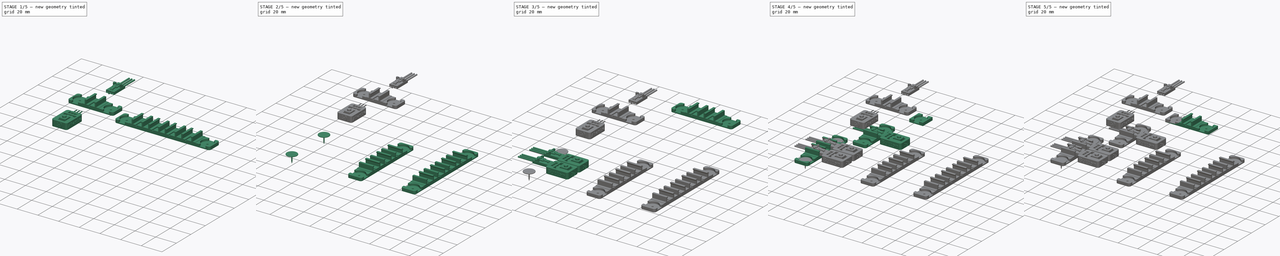
[diagram: build sequence overview — one tinted view per stage of 5, left to right]
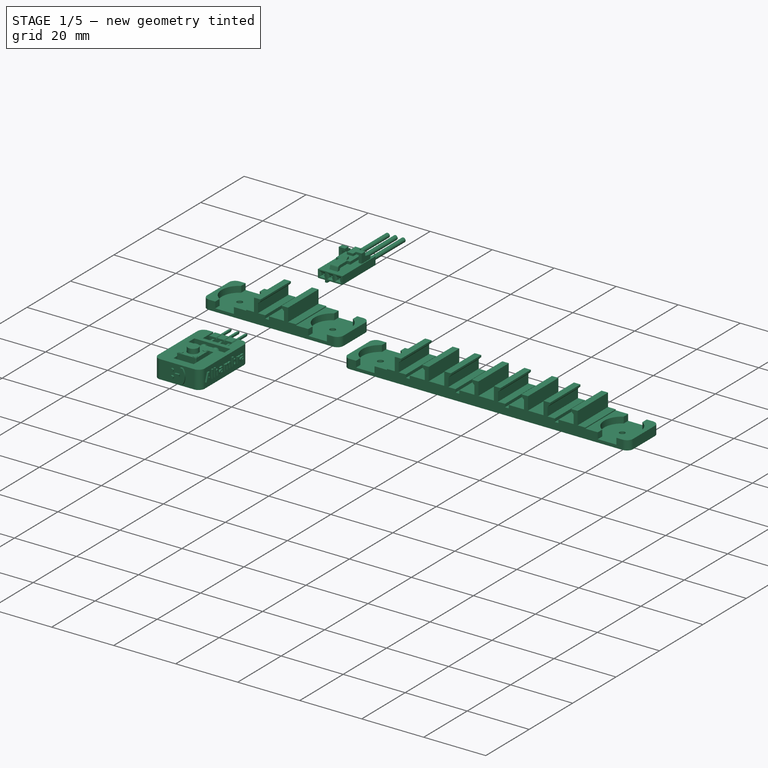
[diagram: stage 1 of 5 — iso view after this stage's code; geometry added in this stage tinted green]
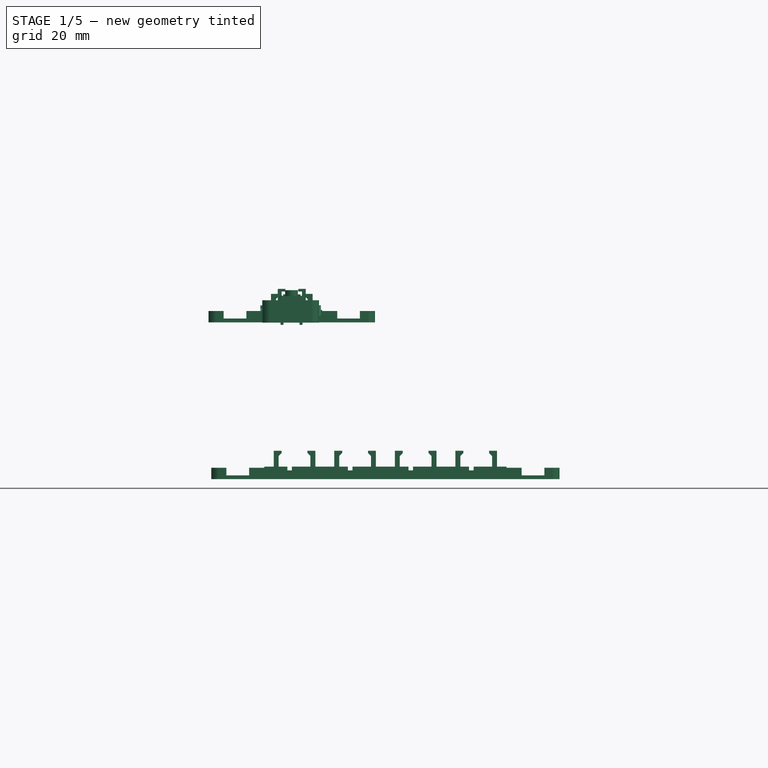
[diagram: stage 1 of 5 — front view after this stage's code; geometry added in this stage tinted green]
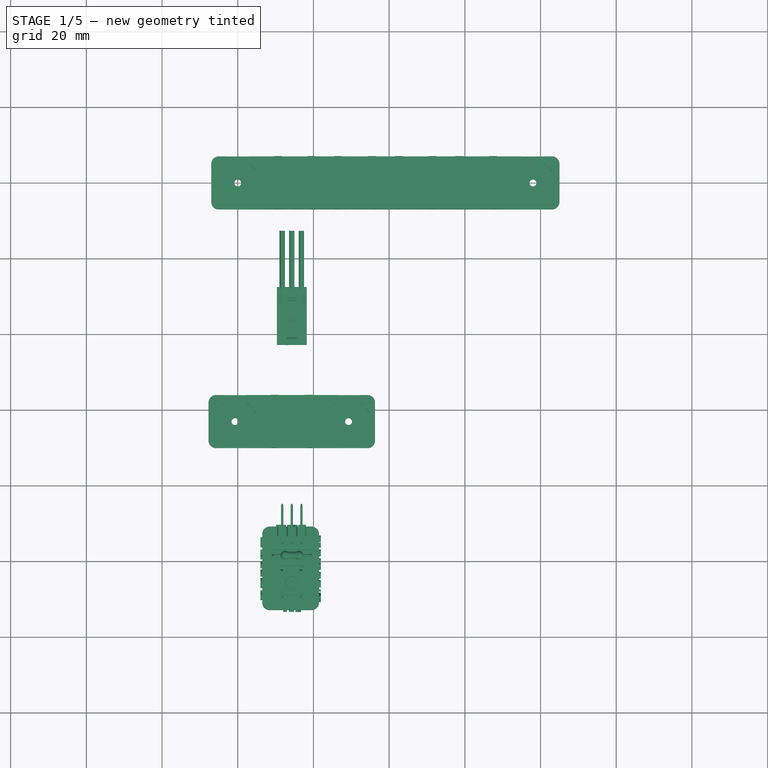
[diagram: stage 1 of 5 — top view after this stage's code; geometry added in this stage tinted green]
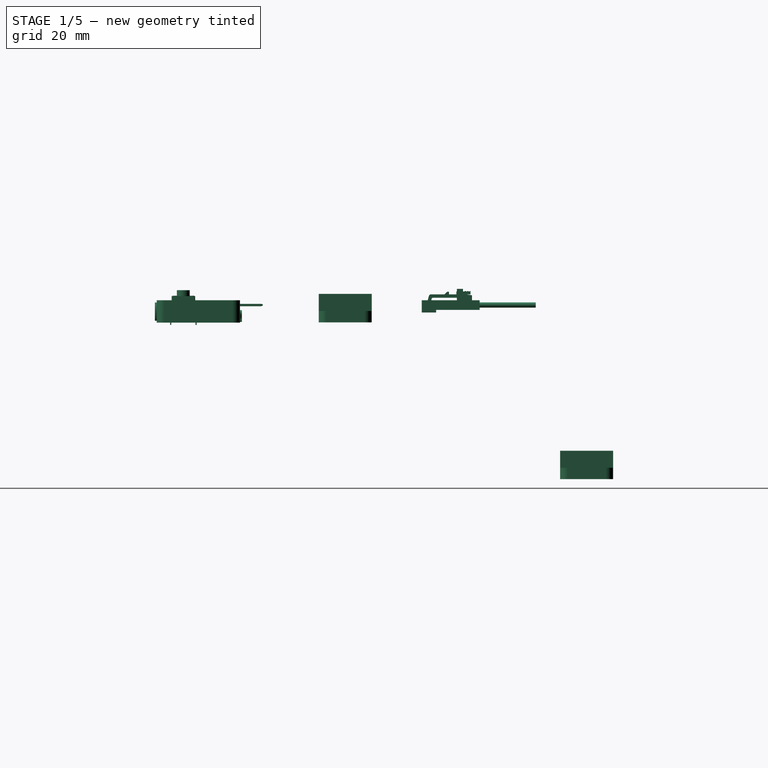
[diagram: stage 1 of 5 — right view after this stage's code; geometry added in this stage tinted green]
FCSTD DOCUMENT  (FreeCAD 0.16R6707 (Git))
Label: board-clamp
License: All rights reserved
LicenseURL: http://en.wikipedia.org/wiki/All_rights_reserved
objects: Part::Feature×32, Part::Part2DObjectPython×18, Part::FeaturePython×13, Part::Compound×10, App::DocumentObjectGroup×10, App::Annotation×7, Sketcher::SketchObject×4, Part::Fillet×4, PartDesign::Pad×2, PartDesign::Pocket×2, Spreadsheet::Sheet×1, Part::MultiFuse×1
note: 90 computed .brp shape members not serialized (recipe doc carries the construction recipe); baked Part::Feature solids carry a one-line shape summary decoded from their .brp

FEATURE [Part::Feature] Fusion001003  label="board-clampx1-fusion"
  shape: bbox 44 x 14 x 7.5 mm, 44 faces (baked)
FEATURE [Part::Fillet] Fillet001  label="Board-clampx1-rounded"
  Base = -> Fusion001003
  Edges = 4 edges r=2: [Edge1,Edge2,Edge108,Edge109]
FEATURE [Part::FeaturePython] Clone008007  label="Board-clampx1"  # Draft clone (typed FeaturePython)
  Objects = -> [Fillet001]
  Placement = pos=(0,29,0) rot=(0,0,1;0rad)
  Scale = (1,1,1)
FEATURE [Part::Feature] Fusion001005  label="board-clampx4-fusion"
  shape: bbox 92 x 14 x 7.5 mm, 92 faces (baked)
FEATURE [Part::Fillet] Fillet003  label="board-clampx4-rounded"
  Base = -> Fusion001005
  Edges = 4 edges r=2: [Edge1,Edge2,Edge252,Edge253]
FEATURE [Part::Feature] Compound002002016  label="Connector007"
  Placement = pos=(72.1686,-95.065,0) rot=(0,0,1;0rad)
  shape: bbox 30.15 x 7.9 x 6.24 mm, 220 faces, 7 solids (baked)
FEATURE [Part::Feature] Compound002002017  label="Connector008"
  Placement = pos=(72.1686,-79.065,0) rot=(0,0,1;0rad)
  shape: bbox 30.15 x 7.9 x 6.24 mm, 220 faces, 7 solids (baked)
FEATURE [Part::Feature] Compound002002018  label="Connector009"
  Placement = pos=(72.1686,-63.065,0) rot=(0,0,1;0rad)
  shape: bbox 30.15 x 7.9 x 6.24 mm, 220 faces, 7 solids (baked)
FEATURE [Part::Feature] Compound002002019  label="Connector010"
  Placement = pos=(72.1686,-47.065,0) rot=(0,0,1;0rad)
  shape: bbox 30.15 x 7.9 x 6.24 mm, 220 faces, 7 solids (baked)
FEATURE [Part::Feature] Compound002002020  label="white-pushpin003"
  Placement = pos=(79.9662,-158.098,-4.57) rot=(0,0,1;0rad)
  shape: bbox 11.26 x 11.26 x 8.7 mm, 14 faces, 2 solids (baked)
FEATURE [Part::Feature] Compound002002021  label="white-pushpin004"
  Placement = pos=(79.9662,-80.0982,-4.57) rot=(0,0,1;0rad)
  shape: bbox 11.26 x 11.26 x 8.7 mm, 14 faces, 2 solids (baked)
FEATURE [App::DocumentObjectGroup] Grupo011  label="clampx4"
  Group = -> [Compound002002016,Compound002002017,Compound002002018,Compound002002019,Compound002002020,Compound002002021,Clone008013]
FEATURE [App::DocumentObjectGroup] Grupo  label="Assembly"
  Group = -> [Grupo008,Grupo009,Part__Feature,Grupo010,Grupo011]
FEATURE [Part::Feature] Part__Feature006  label="board001"
  Placement = pos=(0,-85,-12.57) rot=(0,0,1;0rad)
  shape: bbox 154.2 x 109.4 x 8 mm, 6 faces (baked)
FEATURE [Part::Compound] Compound002002022  label="Alhambra_button003"
  Links = -> [Fusion001001,Compound002001,Compound002002001,Compound001]
  Placement = pos=(6.46521,-91.5834,43.5497) rot=(0,0,-1;1.5708rad)
FEATURE [Part::Compound] Compound002002023  label="Connector011"
  Links = -> [Clone004001,Clone008001,Cylinder003,Cylinder001001,Cylinder002001]
  Placement = pos=(14.2752,-28.2834,46) rot=(0,0,-1;1.5708rad)
FEATURE [Part::Feature] Compound002002025  label="Pushpin-003"
  Placement = pos=(-0.724787,-63.7834,87.6497) rot=(0,0,-1;1.5708rad)
  shape: bbox 11.26 x 11.26 x 8.7 mm, 14 faces, 2 solids (baked)
FEATURE [Part::FeaturePython] Clone008014  label="Board-clampx1-003"  # Draft clone (typed FeaturePython)
  Objects = -> [Clone008007]
  Placement = pos=(-0.724787,-63.7834,41.43) rot=(0,0,1;0rad)
  Scale = (1,1,1)
FEATURE [Part::Feature] Compound002002026  label="Pushpin-004"
  Placement = pos=(29.2752,-63.7834,87.6497) rot=(0,0,-1;1.5708rad)
  shape: bbox 11.26 x 11.26 x 8.7 mm, 14 faces, 2 solids (baked)
FEATURE [Part::Part2DObjectPython] Line  # Draft 2D object (typed FeaturePython)
  ChamferSize = 0
  Closed = false
  End = (29.2752,-63.7834,-4.57)
  FilletRadius = 0
  Length = 84.1197
  MakeFace = true
  Points = (2) [(29.2752,-63.7834,79.5497),(29.2752,-63.7834,-4.57)]
  Start = (29.2752,-63.7834,79.5497)
  Subdivisions = 0
FEATURE [Part::Part2DObjectPython] Line001  # Draft 2D object (typed FeaturePython)
  ChamferSize = 0
  Closed = false
  End = (-0.724787,-63.7834,79.5497)
  FilletRadius = 0
  Length = 84.1197
  MakeFace = true
  Points = (2) [(-0.724787,-63.7834,-4.57),(-0.724787,-63.7834,79.5497)]
  Start = (-0.724787,-63.7834,-4.57)
  Subdivisions = 0
FEATURE [Part::Part2DObjectPython] Line003  # Draft 2D object (typed FeaturePython)
  ChamferSize = 0
  Closed = false
  End = (14.4552,-85.5834,46.18)
  FilletRadius = 0
  Length = 42
  MakeFace = true
  Points = (2) [(14.4552,-43.5834,46.18),(14.4552,-85.5834,46.18)]
  Start = (14.4552,-43.5834,46.18)
  Subdivisions = 0
FEATURE [App::Annotation] Text
  LabelText = 1
  Position = (-24,-64,99)
FEATURE [Part::Part2DObjectPython] Circle001  # Draft 2D object (typed FeaturePython)
  FirstAngle = 0
  LastAngle = 0
  MakeFace = false
  Placement = pos=(-22.8341,-64,102.813) rot=(1,0,0;1.5708rad)
  Radius = 7.16764
FEATURE [Part::Part2DObjectPython] DWire  # Draft 2D object (typed FeaturePython)
  ChamferSize = 0
  Closed = false
  End = (-9,-64,85)
  FilletRadius = 0
  Length = 21.198
  MakeFace = true
  Points = (3) [(-22,-64,95),(-20,-64,85),(-9,-64,85)]
  Start = (-22,-64,95)
  Subdivisions = 0
FEATURE [Part::Part2DObjectPython] Circle002  # Draft 2D object (typed FeaturePython)
  FirstAngle = 0
  LastAngle = 0
  MakeFace = false
  Placement = pos=(-22.8341,-64,102.813) rot=(1,0,0;1.5708rad)
  Radius = 7.16764
FEATURE [App::Annotation] Text001
  LabelText = 1
  Position = (-24,-64,99)
FEATURE [Part::Part2DObjectPython] DWire001  # Draft 2D object (typed FeaturePython)
  ChamferSize = 0
  Closed = false
  End = (-9,-64,85)
  FilletRadius = 0
  Length = 21.198
  MakeFace = true
  Points = (3) [(-22,-64,95),(-20,-64,85),(-9,-64,85)]
  Start = (-22,-64,95)
  Subdivisions = 0
FEATURE [Part::Part2DObjectPython] Circle  label="Circle009"  # Draft 2D object (typed FeaturePython)
  FirstAngle = 0
  LastAngle = 0
  MakeFace = false
  Placement = pos=(-22.8341,-64,60.8132) rot=(1,0,0;1.5708rad)
  Radius = 7.16764
FEATURE [App::Annotation] Text002
  LabelText = 2
  Position = (-24,-64,57)
FEATURE [Part::Part2DObjectPython] DWire002  # Draft 2D object (typed FeaturePython)
  ChamferSize = 0
  Closed = false
  End = (-9,-64,43)
  FilletRadius = 0
  Length = 21.198
  MakeFace = true
  Placement = pos=(0,0,-42) rot=(0,0,1;0rad)
  Points = (3) [(-22,-64,95),(-20,-64,85),(-9,-64,85)]
  Start = (-22,-64,53)
  Subdivisions = 0
FEATURE [Part::Part2DObjectPython] Circle003  label="Circle004"  # Draft 2D object (typed FeaturePython)
  FirstAngle = 0
  LastAngle = 0
  MakeFace = false
  Placement = pos=(-22.8341,-64,60.8132) rot=(1,0,0;1.5708rad)
  Radius = 7.16764
FEATURE [App::Annotation] Text003
  LabelText = 2
  Position = (-24,-64,57)
FEATURE [Part::Part2DObjectPython] DWire003  # Draft 2D object (typed FeaturePython)
  ChamferSize = 0
  Closed = false
  End = (-9,-64,43)
  FilletRadius = 0
  Length = 21.198
  MakeFace = true
  Placement = pos=(0,0,-42) rot=(0,0,1;0rad)
  Points = (3) [(-22,-64,95),(-20,-64,85),(-9,-64,85)]
  Start = (-22,-64,53)
  Subdivisions = 0
FEATURE [Part::Part2DObjectPython] DWire004  # Draft 2D object (typed FeaturePython)
  ChamferSize = 0
  Closed = false
  End = (-64,-64,-5)
  FilletRadius = 0
  Length = 21.198
  MakeFace = true
  Placement = pos=(-55,0,-90) rot=(0,0,1;0rad)
  Points = (3) [(-22,-64,95),(-20,-64,85),(-9,-64,85)]
  Start = (-77,-64,5)
  Subdivisions = 0
FEATURE [App::Annotation] Text005
  LabelText = 5
  Position = (-79,-64,9)
FEATURE [Part::Part2DObjectPython] DWire005  # Draft 2D object (typed FeaturePython)
  ChamferSize = 0
  Closed = false
  End = (-64,-64,-5)
  FilletRadius = 0
  Length = 21.198
  MakeFace = true
  Placement = pos=(-55,0,-90) rot=(0,0,1;0rad)
  Points = (3) [(-22,-64,95),(-20,-64,85),(-9,-64,85)]
  Start = (-77,-64,5)
  Subdivisions = 0
FEATURE [App::Annotation] Text007
  LabelText = 4
  Position = (-47,-64,25)
FEATURE [Part::Part2DObjectPython] Circle007  label="Circle010"  # Draft 2D object (typed FeaturePython)
  FirstAngle = 0
  LastAngle = 0
  MakeFace = false
  Placement = pos=(-45.8341,-64,28.8132) rot=(1,0,0;1.5708rad)
  Radius = 7.16764
FEATURE [App::Annotation] Text008
  LabelText = 3
  Position = (85,-64,93)
FEATURE [Part::Part2DObjectPython] Circle008  label="Circle011"  # Draft 2D object (typed FeaturePython)
  FirstAngle = 0
  LastAngle = 0
  MakeFace = false
  Placement = pos=(86.1659,-64,96.8132) rot=(1,0,0;1.5708rad)
  Radius = 7.16764
FEATURE [Part::Part2DObjectPython] DWire007  # Draft 2D object (typed FeaturePython)
  ChamferSize = 0
  Closed = false
  End = (49.8594,-64,75.6961)
  FilletRadius = 0
  Length = 42.3668
  MakeFace = true
  Points = (3) [(85,-64,89),(76.3511,-64,75.6877),(49.8594,-64,75.6961)]
  Start = (85,-64,89)
  Subdivisions = 0
FEATURE [Part::Part2DObjectPython] DWire006  # Draft 2D object (typed FeaturePython)
  ChamferSize = 0
  Closed = false
  End = (-32,-64,11)
  FilletRadius = 0
  Length = 21.198
  MakeFace = true
  Placement = pos=(-23,0,-74) rot=(0,0,1;0rad)
  Points = (3) [(-22,-64,95),(-20,-64,85),(-9,-64,85)]
  Start = (-45,-64,21)
  Subdivisions = 0
FEATURE [Part::Part2DObjectPython] Circle005  label="Circle006"  # Draft 2D object (typed FeaturePython)
  FirstAngle = 0
  LastAngle = 0
  MakeFace = false
  Placement = pos=(-77.8341,-64,12.8132) rot=(1,0,0;1.5708rad)
  Radius = 7.16764
FEATURE [App::DocumentObjectGroup] Grupo012  label="Exploded-view"
  Group = -> [Part__Feature006,Compound002002022,Compound002002023,Compound002002025,Clone008014,Compound002002026,Line,Line001,Line003,Text,Circle001,DWire,Circle002,Text001,DWire001,Circle,Text002,DWire002,Circle003,Text003,DWire003,DWire004,Text005,DWire005,Text007,Circle007,Text008,Circle008,DWire007,DWire006,Circle005]
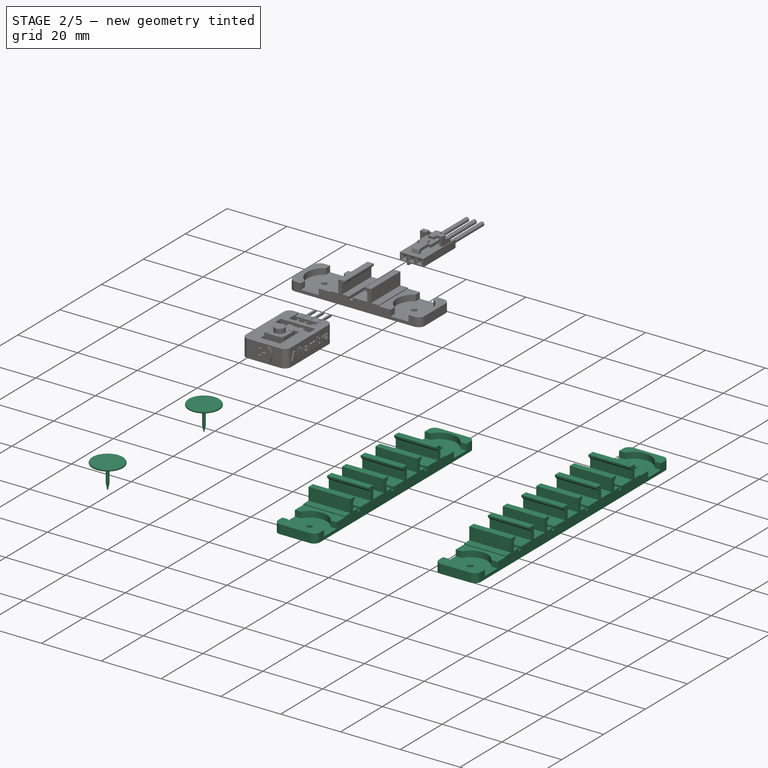
[diagram: stage 2 of 5 — iso view after this stage's code; geometry added in this stage tinted green]
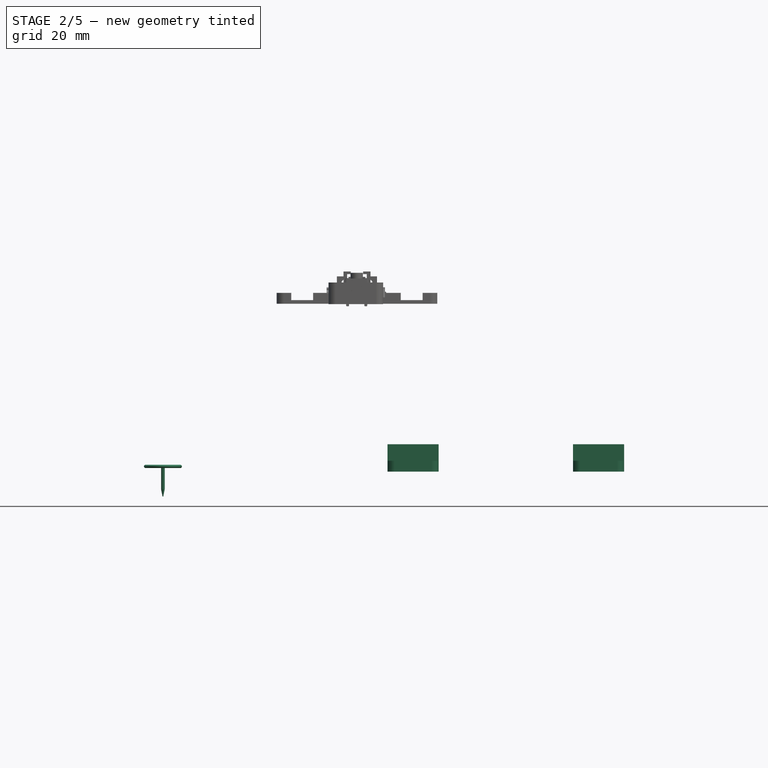
[diagram: stage 2 of 5 — front view after this stage's code; geometry added in this stage tinted green]
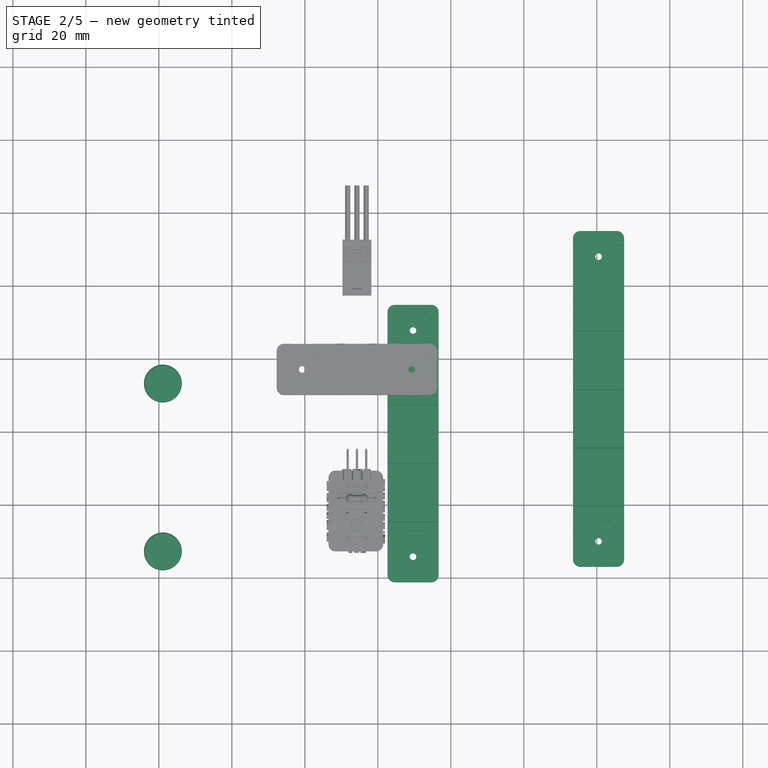
[diagram: stage 2 of 5 — top view after this stage's code; geometry added in this stage tinted green]
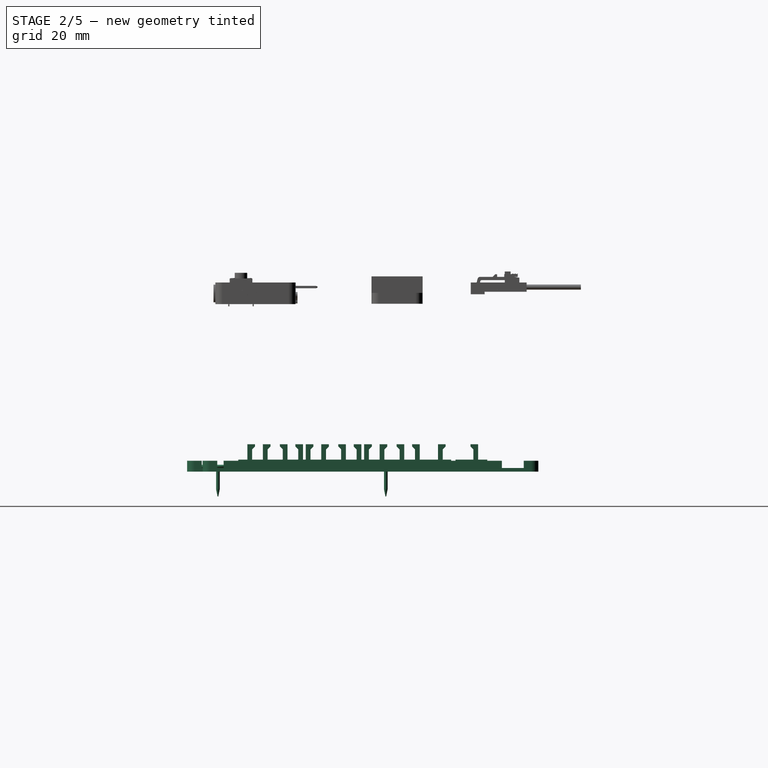
[diagram: stage 2 of 5 — right view after this stage's code; geometry added in this stage tinted green]
FEATURE [Part::Feature] Part__Feature  label="board"
  Placement = pos=(0,-85,-12.57) rot=(0,0,1;0rad)
  shape: bbox 154.2 x 109.4 x 8 mm, 6 faces (baked)
FEATURE [Part::Feature] Part__Feature004  label="white-Pushpin"
  Placement = pos=(0.502392,48.0332,1.3) rot=(0,0,1;0rad)
  shape: bbox 11.26 x 11.26 x 0.9 mm, 7 faces (baked)
FEATURE [Part::Feature] Part__Feature005  label="white-Pushpin001"
  Placement = pos=(0.502392,48.0332,1.3) rot=(0,0,1;0rad)
  shape: bbox 9.55 x 9.55 x 8.4 mm, 7 faces (baked)
FEATURE [Part::Compound] Compound002002009  label="white-pushpin"
  Links = -> [Part__Feature004,Part__Feature005]
  Placement = pos=(-39.3934,-114.905,-4.57) rot=(0,0,1;0rad)
FEATURE [Part::Compound] Compound002002010  label="white-pushpin001"
  Links = -> [Part__Feature004,Part__Feature005]
  Placement = pos=(-39.3934,-160.905,-4.57) rot=(0,0,1;0rad)
FEATURE [App::DocumentObjectGroup] Grupo009  label="clampx2"
  Group = -> [Clone008009,Compound002002005,Compound002002006,Compound002002007,Compound002002008,Compound002002009,Compound002002010]
FEATURE [Part::Feature] Fusion001004  label="board-clamp-x3-fusion"
  shape: bbox 76 x 14 x 7.5 mm, 76 faces (baked)
FEATURE [Part::Fillet] Fillet002  label="Board-clampx3-rounded"
  Base = -> Fusion001004
  Edges = 4 edges r=2: [Edge1,Edge2,Edge204,Edge205]
FEATURE [Part::FeaturePython] Clone008010  label="Board-clampx3"  # Draft clone (typed FeaturePython)
  Objects = -> [Fillet002]
  Placement = pos=(0,66,0) rot=(0,0,1;0rad)
  Scale = (1,1,1)
FEATURE [App::DocumentObjectGroup] Grupo006  label="src-board-clamp-generic"
  Group = -> [Fusion,Fillet,Fillet001,Fusion001004,Fillet002,Fusion001005,Fillet003]
FEATURE [Part::FeaturePython] Clone008011  label="Board-clampx4"  # Draft clone (typed FeaturePython)
  Objects = -> [Fillet003]
  Placement = pos=(0,85,0) rot=(0,0,1;0rad)
  Scale = (1,1,1)
FEATURE [App::DocumentObjectGroup] Grupo007  label="print"
  Group = -> [Clone008006,Clone008007,Clone008010,Clone008011]
FEATURE [Part::FeaturePython] Clone008012  label="Board-clampx3-1"  # Draft clone (typed FeaturePython)
  Objects = -> [Clone008010]
  Placement = pos=(29.6423,-114.302,-4.57) rot=(0,0,1;1.5708rad)
  Scale = (1,1,1)
FEATURE [Part::Feature] Compound002002011  label="Connector004"
  Placement = pos=(21.3423,-99.3021,0) rot=(0,0,1;0rad)
  shape: bbox 30.15 x 7.9 x 6.24 mm, 220 faces, 7 solids (baked)
FEATURE [Part::Feature] Compound002002012  label="Connector005"
  Placement = pos=(21.3423,-83.3021,0) rot=(0,0,1;0rad)
  shape: bbox 30.15 x 7.9 x 6.24 mm, 220 faces, 7 solids (baked)
FEATURE [Part::Feature] Compound002002013  label="Connector006"
  Placement = pos=(21.3423,-67.3021,0) rot=(0,0,1;0rad)
  shape: bbox 30.15 x 7.9 x 6.24 mm, 220 faces, 7 solids (baked)
FEATURE [Part::Feature] Compound002002014  label="white-pushpin002"
  Placement = pos=(29.1399,-162.335,-4.57) rot=(0,0,1;0rad)
  shape: bbox 11.26 x 11.26 x 8.7 mm, 14 faces, 2 solids (baked)
FEATURE [Part::Feature] Compound002002015  label="Pushpin-002"
  Placement = pos=(29.6423,-52.3021,-3.35028) rot=(0,0,1;0rad)
  shape: bbox 11.26 x 11.26 x 8.7 mm, 14 faces, 2 solids (baked)
FEATURE [App::DocumentObjectGroup] Grupo010  label="clampx3"
  Group = -> [Clone008012,Compound002002011,Compound002002012,Compound002002013,Compound002002014,Compound002002015]
FEATURE [Part::FeaturePython] Clone008013  label="Board-clampx4-1"  # Draft clone (typed FeaturePython)
  Objects = -> [Clone008011]
  Placement = pos=(80.4686,-110.065,-4.57) rot=(0,0,1;1.5708rad)
  Scale = (1,1,1)
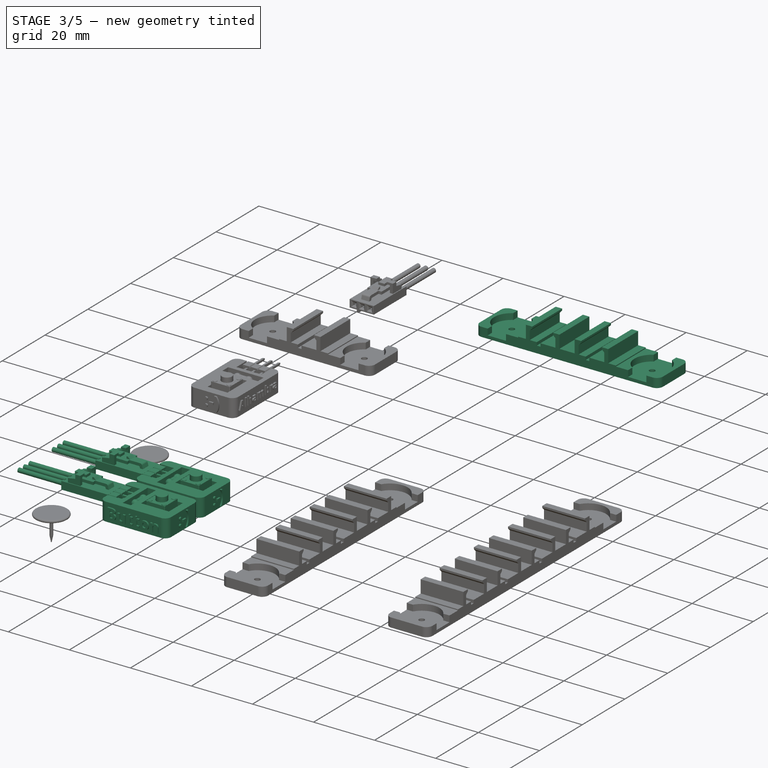
[diagram: stage 3 of 5 — iso view after this stage's code; geometry added in this stage tinted green]
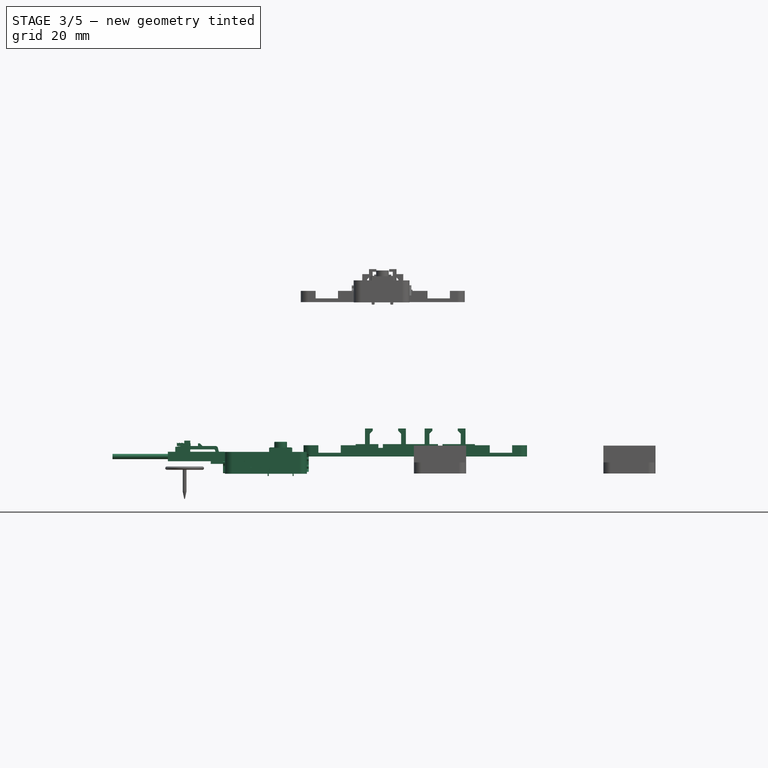
[diagram: stage 3 of 5 — front view after this stage's code; geometry added in this stage tinted green]
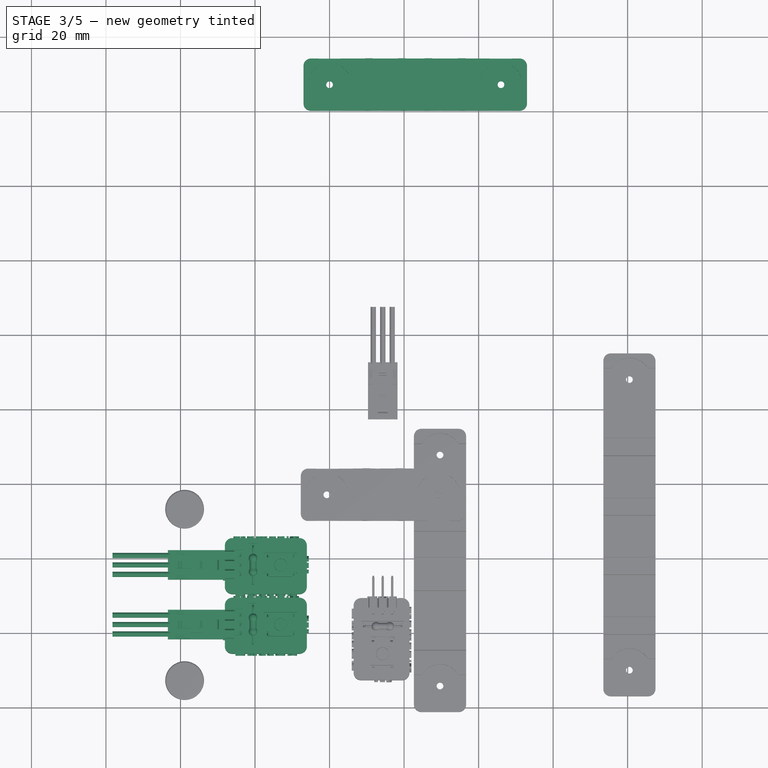
[diagram: stage 3 of 5 — top view after this stage's code; geometry added in this stage tinted green]
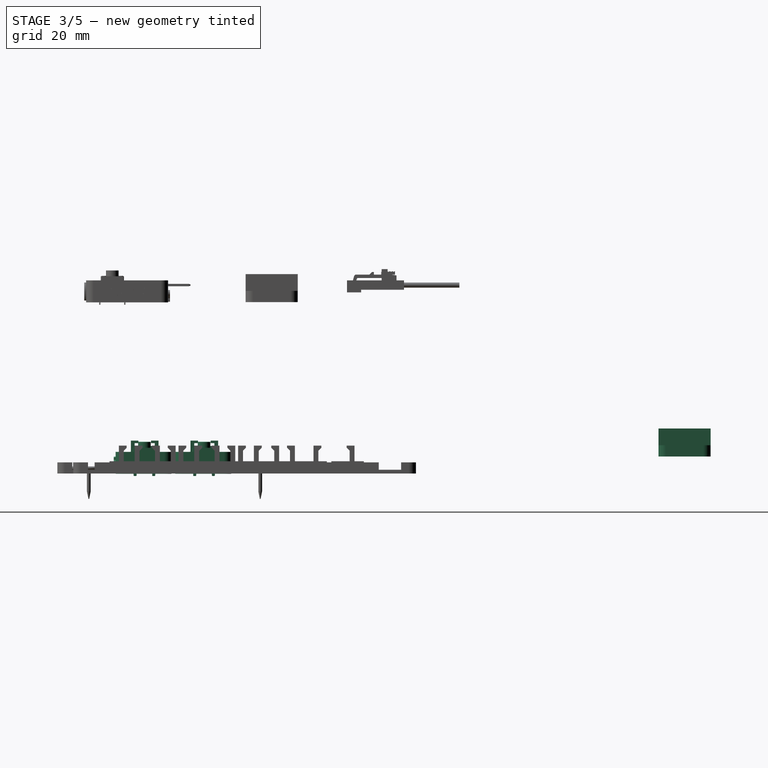
[diagram: stage 3 of 5 — right view after this stage's code; geometry added in this stage tinted green]
FEATURE [Part::Feature] Fusion001002  label="board-clampx2-fusion"
  shape: bbox 60 x 14 x 7.5 mm, 60 faces (baked)
FEATURE [Part::Fillet] Fillet  label="board-clampx2-rounded"
  Base = -> Fusion001002
  Edges = 4 edges r=2: [Edge1,Edge2,Edge156,Edge157]
FEATURE [Part::FeaturePython] Clone008006  label="board-clampx2"  # Draft clone (typed FeaturePython)
  Objects = -> [Fillet]
  Placement = pos=(0,47,0) rot=(0,0,1;0rad)
  Scale = (1,1,1)
FEATURE [App::DocumentObjectGroup] Grupo008  label="clampx1"
  Group = -> [Compound,Compound002002003,Compound002002004,Compound002002002,Clone008008]
FEATURE [Part::Compound] Compound002002005  label="Alhambra_button001"
  Links = -> [Fusion001001,Compound002001,Compound002002001,Compound001]
  Placement = pos=(-28.091,-89.6818,-2.45028) rot=(0,0,1;0rad)
FEATURE [Part::Compound] Compound002002006  label="Connector002"
  Links = -> [Clone004001,Clone008001,Cylinder003,Cylinder001001,Cylinder002001]
  Placement = pos=(-43.391,-81.8718,0) rot=(0,0,1;0rad)
FEATURE [Part::Compound] Compound002002007  label="Alhambra_button002"
  Links = -> [Fusion001001,Compound002001,Compound002002001,Compound001]
  Placement = pos=(-28.091,-105.682,-2.45028) rot=(0,0,1;0rad)
FEATURE [Part::Compound] Compound002002008  label="Connector003"
  Links = -> [Clone004001,Clone008001,Cylinder003,Cylinder001001,Cylinder002001]
  Placement = pos=(-43.391,-97.8718,0) rot=(0,0,1;0rad)
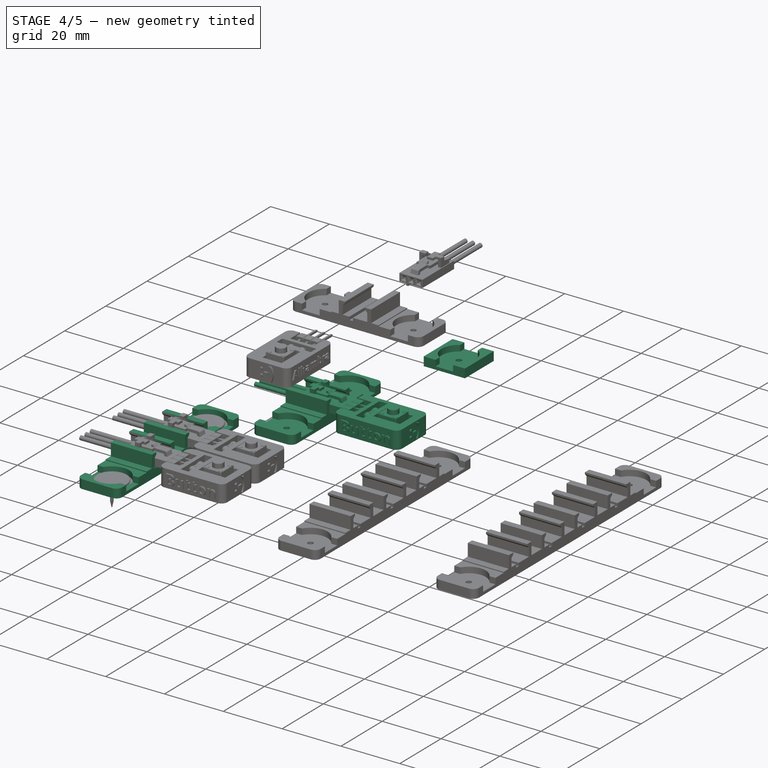
[diagram: stage 4 of 5 — iso view after this stage's code; geometry added in this stage tinted green]
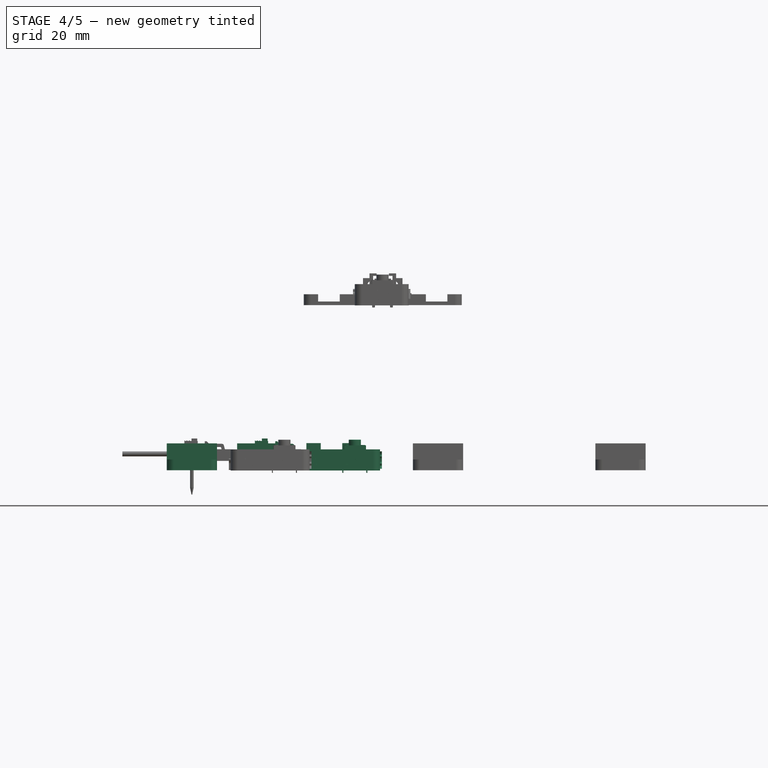
[diagram: stage 4 of 5 — front view after this stage's code; geometry added in this stage tinted green]
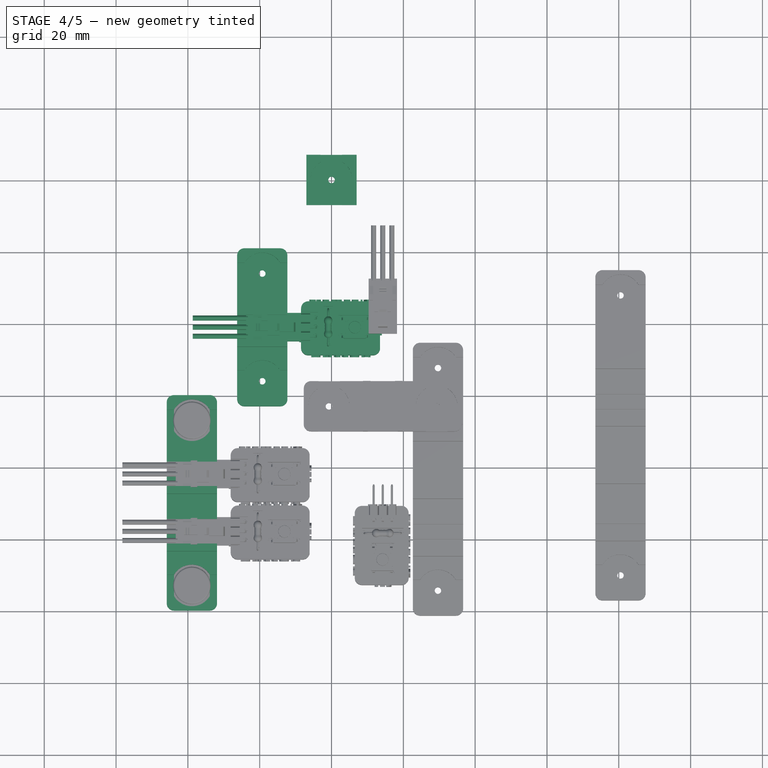
[diagram: stage 4 of 5 — top view after this stage's code; geometry added in this stage tinted green]
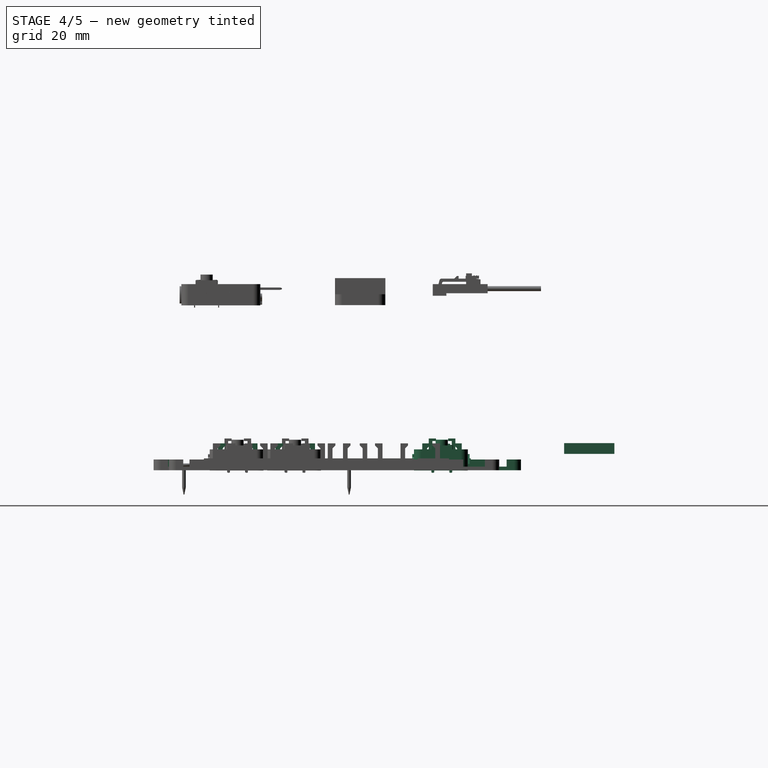
[diagram: stage 4 of 5 — right view after this stage's code; geometry added in this stage tinted green]
FEATURE [Part::Feature] Clone004001  label="Connector001"
  shape: bbox 15.3 x 7.9 x 6.24 mm, 133 faces (baked)
FEATURE [Part::Feature] Clone008001  label="pins001"
  shape: bbox 12.6 x 6.58 x 1.959 mm, 78 faces, 3 solids (baked)
FEATURE [Part::Feature] Cylinder003  label="vcc-wire001"
  Placement = pos=(5.15,0,0) rot=(0,-1,0;1.5708rad)
  shape: bbox 20 x 1.4 x 1.4 mm, 3 faces (baked)
FEATURE [Part::Feature] Cylinder001001  label="vcc-signal001"
  Placement = pos=(5.15,2.54,0) rot=(0,-1,0;1.5708rad)
  shape: bbox 20 x 1.4 x 1.4 mm, 3 faces (baked)
FEATURE [Part::Feature] Cylinder002001  label="wire-gnd001"
  Placement = pos=(5.15,-2.54,0) rot=(0,-1,0;1.5708rad)
  shape: bbox 20 x 1.4 x 1.4 mm, 3 faces (baked)
FEATURE [Part::Feature] Fusion001001  label="PCB-with-text001"
  shape: bbox 23 x 16 x 5.9 mm, 444 faces (baked)
FEATURE [Part::Feature] Compound002001  label="Compound003"
  shape: bbox 2.3 x 10.64 x 5.304 mm, 28 faces, 6 solids (baked)
FEATURE [Part::Feature] Compound002002001  label="Compound002004"
  shape: bbox 10.36 x 7.62 x 5.5 mm, 96 faces, 6 solids (baked)
FEATURE [Part::Feature] Compound001  label="pushbutton-mini001"
  Placement = pos=(14.9681,7.73489,1.4) rot=(0,0,1;0rad)
  shape: bbox 8.044 x 6.2 x 9.2 mm, 136 faces, 6 solids (baked)
FEATURE [Part::Compound] Compound  label="Alhambra_button"
  Links = -> [Fusion001001,Compound002001,Compound002002001,Compound001]
  Placement = pos=(-8.48388,-48.7953,-2.45028) rot=(0,0,1;0rad)
FEATURE [Part::Feature] Compound002002002  label="Pushpin-1"
  Placement = pos=(-19.2839,-55.9853,-3.35028) rot=(0,0,1;0rad)
  shape: bbox 11.26 x 11.26 x 8.7 mm, 14 faces, 2 solids (baked)
FEATURE [Part::Compound] Compound002002003  label="Connector"
  Links = -> [Clone004001,Clone008001,Cylinder003,Cylinder001001,Cylinder002001]
  Placement = pos=(-23.7839,-40.9853,0) rot=(0,0,1;0rad)
FEATURE [Part::Feature] Compound002002004  label="pushpin-2"
  Placement = pos=(-19.2839,-25.9853,-3.65028) rot=(0,0,1;0rad)
  shape: bbox 9.1 x 9.1 x 22.45 mm, 12 faces, 2 solids (baked)
FEATURE [Sketcher::SketchObject] Sketch009  label="pp-unit-body-sketch001"
  sketch-geometry (4):
    g0: LineSegment StartX=-7 StartY=7 StartZ=0 EndX=7 EndY=7 EndZ=0
    g1: LineSegment StartX=7 StartY=7 StartZ=0 EndX=7 EndY=-7 EndZ=0
    g2: LineSegment StartX=7 StartY=-7 StartZ=0 EndX=-7 EndY=-7 EndZ=0
    g3: LineSegment StartX=-7 StartY=-7 StartZ=0 EndX=-7 EndY=7 EndZ=0
  constraints (11):
    c: Coincident(g0,g1)
    c: Coincident(g1,g2)
    c: Coincident(g2,g3)
    c: Coincident(g3,g0)
    c: Horizontal(g0)
    c: Horizontal(g2)
    c: Vertical(g1)
    c: Vertical(g3)
    c: Symmetric(g0,g1,g-1)
    c: Equal(g3,g0)
    c: DistanceX(g0,g0) = 14
FEATURE [PartDesign::Pad] Pad003  label="push-pin-unit-body001"
  Length = 3
  Length2 = 100
  Sketch = -> Sketch009
  Type = 0
FEATURE [Sketcher::SketchObject] Sketch010  label="pushpin-top-cutout-sketch001"
  ExternalGeometry = -> [Pad003]
  Placement = pos=(0,0,3) rot=(0,0,1;0rad)
  Support = -> Pad003 [Face6]
  sketch-geometry (8):
    g0: LineSegment StartX=-3 StartY=7 StartZ=0 EndX=-3 EndY=4.96387 EndZ=0
    g1: ArcOfCircle CenterX=0 CenterY=0 CenterZ=0 NormalX=0 NormalY=0 NormalZ=1 Radius=5.8 StartAngle=2.11442 EndAngle=4.16876
    g2: LineSegment StartX=-3 StartY=-7 StartZ=0 EndX=-3 EndY=-4.96387 EndZ=0
    g3: LineSegment StartX=-3 StartY=7 StartZ=0 EndX=3 EndY=7 EndZ=0
    g4: LineSegment StartX=3 StartY=7 StartZ=0 EndX=3 EndY=4.96387 EndZ=0
    g5: ArcOfCircle CenterX=0 CenterY=0 CenterZ=0 NormalX=0 NormalY=0 NormalZ=1 Radius=5.8 StartAngle=5.25601 EndAngle=7.31036
    g6: LineSegment StartX=3 StartY=-4.96387 StartZ=0 EndX=3 EndY=-7 EndZ=0
    g7: LineSegment StartX=3 StartY=-7 StartZ=0 EndX=-3 EndY=-7 EndZ=0
  constraints (23):
    c: Radius(g1) = 5.8
    c: Coincident(g1,g0)
    c: Coincident(g1,g-1)
    c: PointOnObject(g1,g0)
    c: Vertical(g2)
    c: Coincident(g2,g1)
    c: Coincident(g0,g3)
    c: Horizontal(g3)
    c: Coincident(g3,g4)
    c: Vertical(g4)
    c: PointOnObject(g0,g-3)
    c: DistanceX(g0,g3) = 6
    c: Symmetric(g2,g0,g-1)
    c: Symmetric(g0,g3,g-2)
    c: Coincident(g5,g-1)
    c: Coincident(g4,g5)
    c: Symmetric(g0,g4,g-2)
    c: Vertical(g6)
    c: Coincident(g6,g7)
    c: Horizontal(g7)
    c: Coincident(g7,g2)
    c: Coincident(g6,g5)
    c: Symmetric(g6,g2,g-2)
FEATURE [PartDesign::Pocket] Pocket006  label="pushpin-top-cutout001"
  Length = 2
  Sketch = -> Sketch010
  Type = 0
FEATURE [Sketcher::SketchObject] Sketch011  label="pushpin-hole-sketch001"
  Placement = pos=(0,0,1) rot=(0,0,1;0rad)
  Support = -> Pocket006 [Face6]
  sketch-geometry (1):
    g0: Circle CenterX=0 CenterY=0 CenterZ=0 NormalX=0 NormalY=0 NormalZ=1 Radius=0.9
  constraints (2):
    c: Coincident(g0,g-1)
    c: Radius(g0) = 0.9
FEATURE [PartDesign::Pocket] Pocket007  label="pushpin-hole001"
  Length = 5
  Sketch = -> Sketch011
  Type = 1
FEATURE [Part::FeaturePython] Clone008008  label="Board-clampx1-2"  # Draft clone (typed FeaturePython)
  Objects = -> [Clone008007]
  Placement = pos=(-19.2839,-55.9853,-4.57) rot=(0,0,1;1.5708rad)
  Scale = (1,1,1)
FEATURE [Part::FeaturePython] Clone008009  label="Board-clampx2-1"  # Draft clone (typed FeaturePython)
  Objects = -> [Clone008006]
  Placement = pos=(-38.891,-112.872,-4.57) rot=(0,0,1;1.5708rad)
  Scale = (1,1,1)
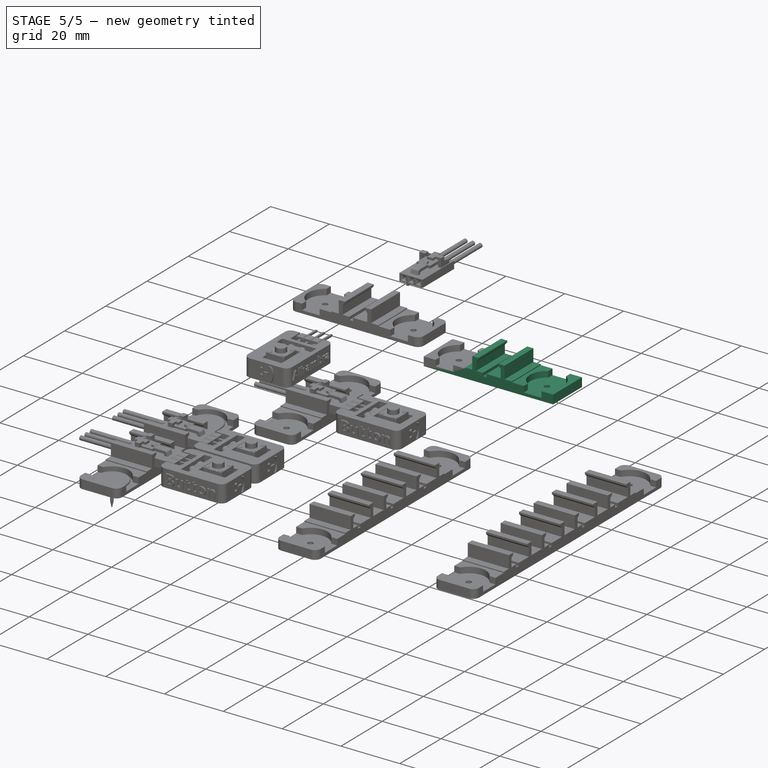
[diagram: stage 5 of 5 — iso view after this stage's code; geometry added in this stage tinted green]
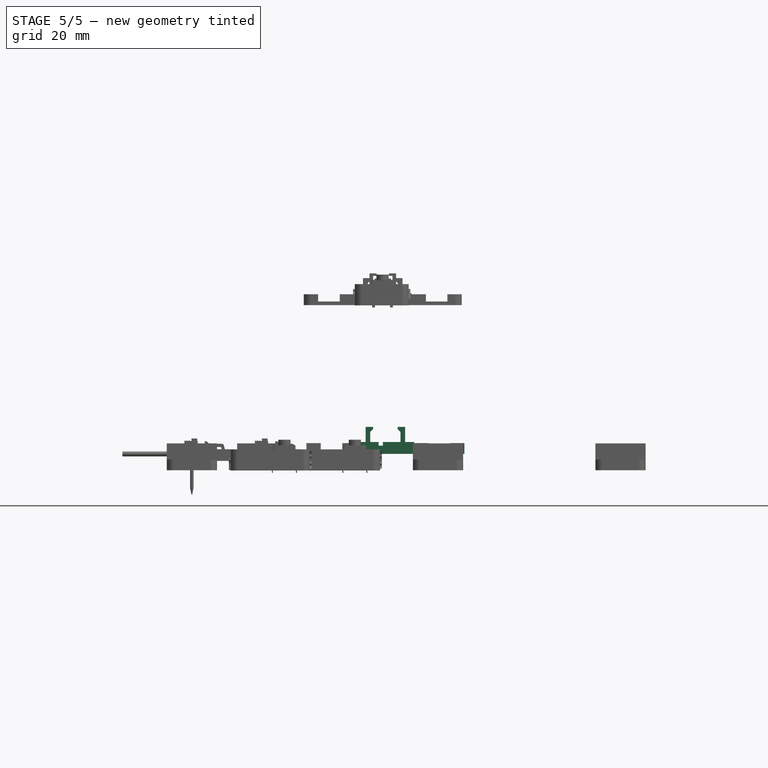
[diagram: stage 5 of 5 — front view after this stage's code; geometry added in this stage tinted green]
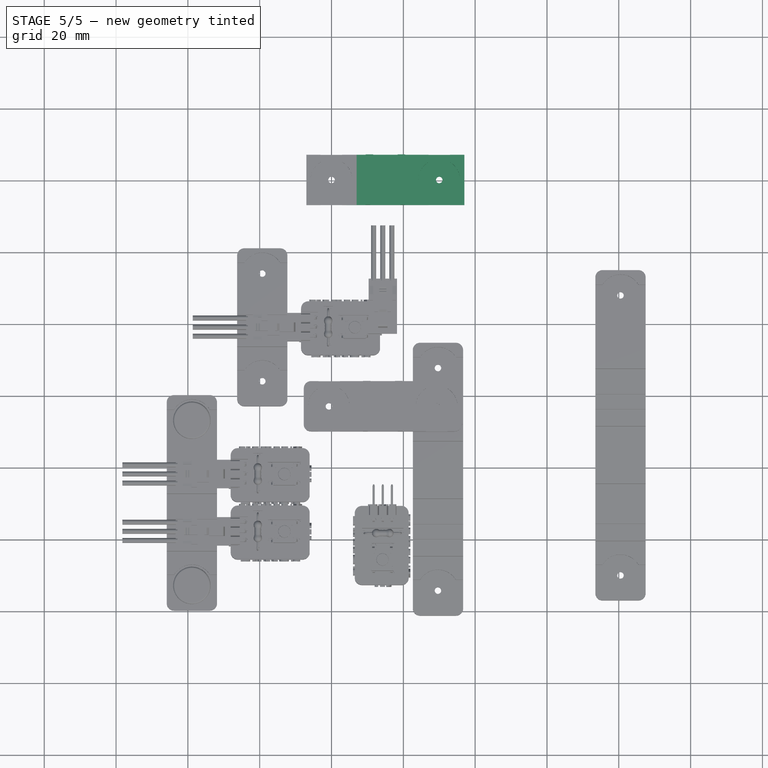
[diagram: stage 5 of 5 — top view after this stage's code; geometry added in this stage tinted green]
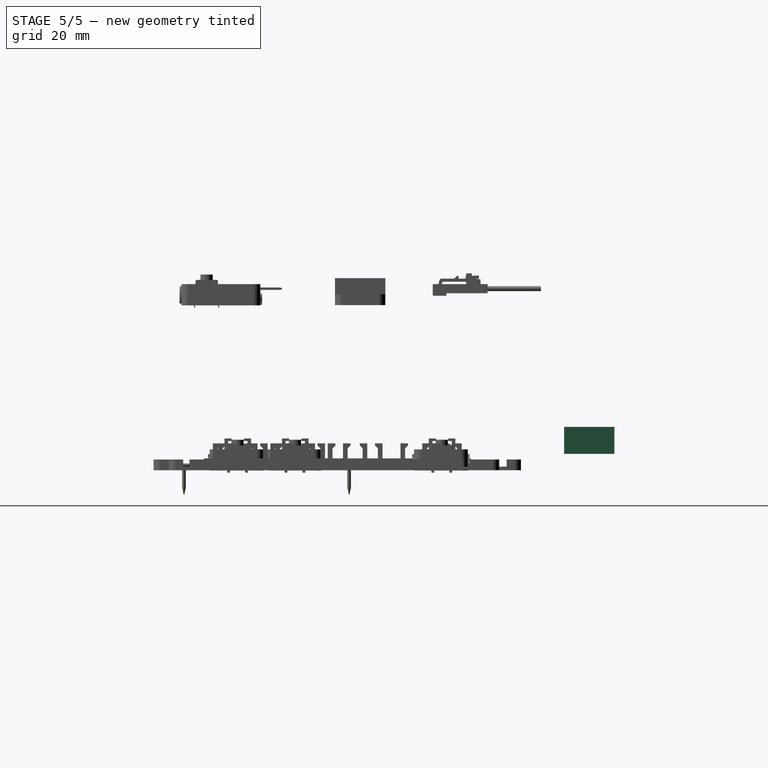
[diagram: stage 5 of 5 — right view after this stage's code; geometry added in this stage tinted green]
FEATURE [App::DocumentObjectGroup] Grupo004  label="src-pushpin-units"
  Group = -> [Pad003,Pocket006,Pocket007]
FEATURE [Part::FeaturePython] Clone008002  label="pushpin-unit"  # Draft clone (typed FeaturePython)
  Objects = -> [Pocket007]
  Scale = (1,1,1)
FEATURE [Sketcher::SketchObject] Sketch012  label="clamp-unit-sketch"
  Placement = pos=(0,0,0) rot=(0.57735,0.57735,0.57735;2.0944rad)
  sketch-geometry (20):
    g0: LineSegment StartX=-8 StartY=0 StartZ=0 EndX=-8 EndY=3.3 EndZ=0
    g1: LineSegment StartX=-8 StartY=3.3 StartZ=0 EndX=-5.5 EndY=3.3 EndZ=0
    g2: LineSegment StartX=-5.5 StartY=3.3 StartZ=0 EndX=-5.5 EndY=7.5 EndZ=0
    g3: LineSegment StartX=-5.5 StartY=7.5 StartZ=0 EndX=-3.4 EndY=7.5 EndZ=0
    g4: LineSegment StartX=-3.4 StartY=7.5 StartZ=0 EndX=-3.4 EndY=6.9 EndZ=0
    g5: LineSegment StartX=-3.4 StartY=6.9 StartZ=0 EndX=-4.2 EndY=6.1 EndZ=0
    g6: LineSegment StartX=-4.2 StartY=6.1 StartZ=0 EndX=-4.2 EndY=3.3 EndZ=0
    g7: LineSegment StartX=-4.2 StartY=3.3 StartZ=0 EndX=-1.9 EndY=3.3 EndZ=0
    g8: LineSegment StartX=-1.9 StartY=3.3 StartZ=0 EndX=-1.9 EndY=2.3 EndZ=0
    g9: LineSegment StartX=-1.9 StartY=2.3 StartZ=0 EndX=-0.7 EndY=2.3 EndZ=0
    g10: LineSegment StartX=-0.7 StartY=2.3 StartZ=0 EndX=-0.7 EndY=3.3 EndZ=0
    g11: LineSegment StartX=-0.7 StartY=3.3 StartZ=0 EndX=4.2 EndY=3.3 EndZ=0
    g12: LineSegment StartX=4.2 StartY=3.3 StartZ=0 EndX=4.2 EndY=6.1 EndZ=0
    g13: LineSegment StartX=4.2 StartY=6.1 StartZ=0 EndX=3.4 EndY=6.9 EndZ=0
    g14: LineSegment StartX=3.4 StartY=6.9 StartZ=0 EndX=3.4 EndY=7.5 EndZ=0
    g15: LineSegment StartX=3.4 StartY=7.5 StartZ=0 EndX=5.5 EndY=7.5 EndZ=0
    g16: LineSegment StartX=5.5 StartY=7.5 StartZ=0 EndX=5.5 EndY=3.3 EndZ=0
    g17: LineSegment StartX=5.5 StartY=3.3 StartZ=0 EndX=8 EndY=3.3 EndZ=0
    g18: LineSegment StartX=8 StartY=3.3 StartZ=0 EndX=8 EndY=0 EndZ=0
    g19: LineSegment StartX=8 StartY=0 StartZ=0 EndX=-8 EndY=0 EndZ=0
  constraints (58):
    c: PointOnObject(g0,g-1)
    c: Vertical(g0)
    c: Coincident(g0,g1)
    c: Horizontal(g1)
    c: Coincident(g1,g2)
    c: Vertical(g2)
    c: Coincident(g2,g3)
    c: Horizontal(g3)
    c: Coincident(g3,g4)
    c: Coincident(g4,g5)
    c: Coincident(g5,g6)
    c: Vertical(g6)
    c: Coincident(g6,g7)
    c: Horizontal(g7)
    c: Coincident(g7,g8)
    c: Vertical(g8)
    c: Coincident(g8,g9)
    c: Horizontal(g9)
    c: Coincident(g9,g10)
    c: Vertical(g10)
    c: Coincident(g10,g11)
    c: Horizontal(g11)
    c: Coincident(g11,g12)
    c: Vertical(g12)
    c: Coincident(g12,g13)
    c: Coincident(g13,g14)
    c: Coincident(g14,g15)
    c: Horizontal(g15)
    c: Coincident(g15,g16)
    c: Vertical(g16)
    c: Coincident(g16,g17)
    c: Horizontal(g17)
    c: Coincident(g17,g18)
    c: PointOnObject(g18,g-1)
    c: Vertical(g18)
    c: Coincident(g18,g19)
    c: Coincident(g19,g0)
    c: DistanceX(g19,g19) = 16
    c: PointOnObject(g1,g7)
    c: PointOnObject(g16,g11)
    c: Symmetric(g0,g18,g-2)
    c: Symmetric(g1,g16,g-2)
    c: DistanceX(g7,g7) = 2.3
    c: DistanceX(g1,g6) = 1.3
    c: DistanceY(g1,g2) = 4.2
    c: DistanceY(g6,g6) = 2.8
    c: DistanceY(g0,g0) = 3.3
    c: DistanceX(g9,g9) = 1.2
    c: DistanceY(g10,g10) = 1
    c: Symmetric(g11,g6,g-2)
    c: PointOnObject(g14,g3)
    c: DistanceX(g6,g11) = 8.4
    c: Angle(g6,g5) = 2.35619
    c: DistanceX(g5,g4) = 0.8
    c: Vertical(g4)
    c: Vertical(g14)
    c: Symmetric(g13,g4,g-2)
    c: Symmetric(g5,g12,g-2)
FEATURE [PartDesign::Pad] Pad004  label="clamp-unit"
  Length = 14
  Length2 = 100
  Midplane = true
  Placement = pos=(0,0,0) rot=(0.57735,0.57735,0.57735;2.0944rad)
  Sketch = -> Sketch012
  Type = 0
FEATURE [App::DocumentObjectGroup] Grupo005  label="src-clamp-unit"
  Group = -> [Pad004]
FEATURE [Part::FeaturePython] Clone  label="clamp-unit001"  # Draft clone (typed FeaturePython)
  Objects = -> [Pad004]
  Placement = pos=(15,0,0) rot=(1,0,0;1.5708rad)
  Scale = (1,1,1)
FEATURE [Part::FeaturePython] Array  # Draft array (typed FeaturePython)
  Angle = 360
  ArrayType = 0
  Axis = (0,0,1)
  Base = -> Clone
  Center = (0,0,0)
  Fuse = true
  IntervalAxis = (0,0,0)
  IntervalX = (16,0,0)
  IntervalY = (0,1,0)
  IntervalZ = (0,0,0)
  NumberPolar = 1
  NumberX = 1
  NumberY = 1
  NumberZ = 1
  expr: NumberX = param.num
FEATURE [Part::FeaturePython] Clone008003  label="pushpin-unit001"  # Draft clone (typed FeaturePython)
  Objects = -> [Clone008002]
  Placement = pos=(30,0,0) rot=(0,0,1;0rad)
  Scale = (1,1,1)
  expr: Placement.Base.x = param.num * 16 + 14
FEATURE [Spreadsheet::Sheet] Spreadsheet  label="param"
  cells = B3(num)=1; C3=Number of clamps
FEATURE [Part::MultiFuse] Fusion  label="board-clamp-generic-fusion"
  Shapes = -> [Clone008003,Array,Clone008002]
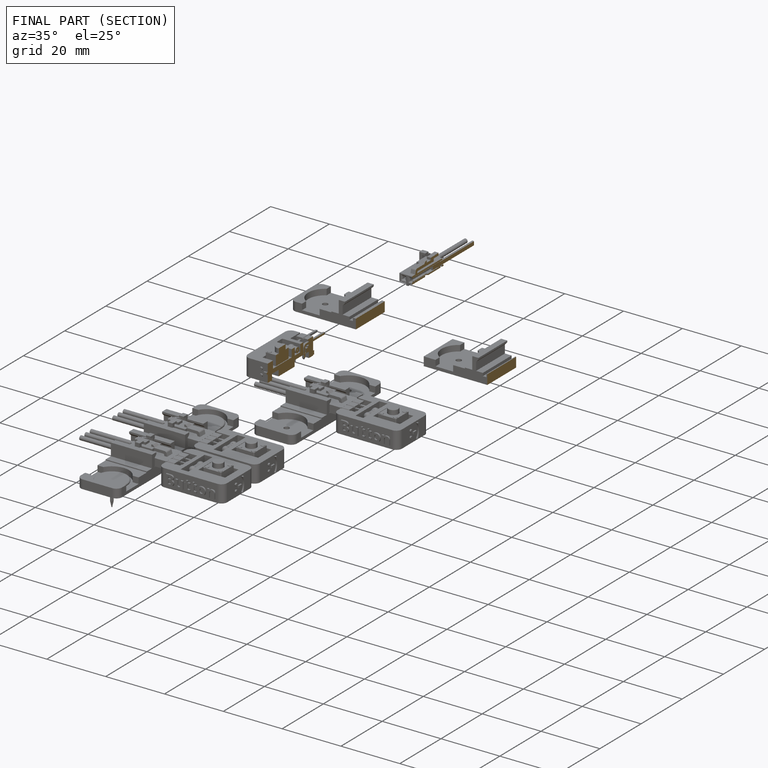
[diagram: finished part — half-section view (interior)]
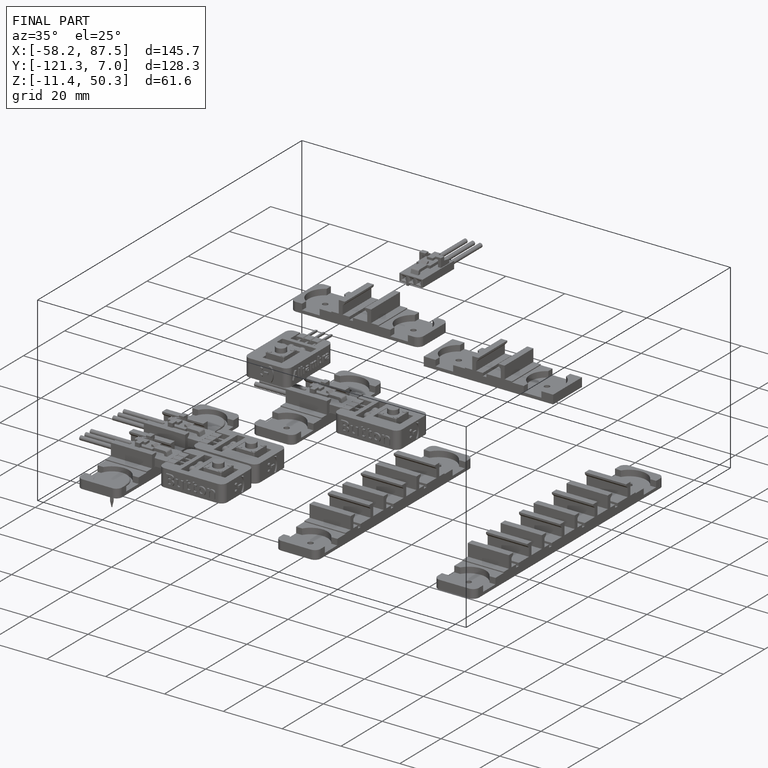
[diagram: finished part — iso view with bounding-box wireframe]
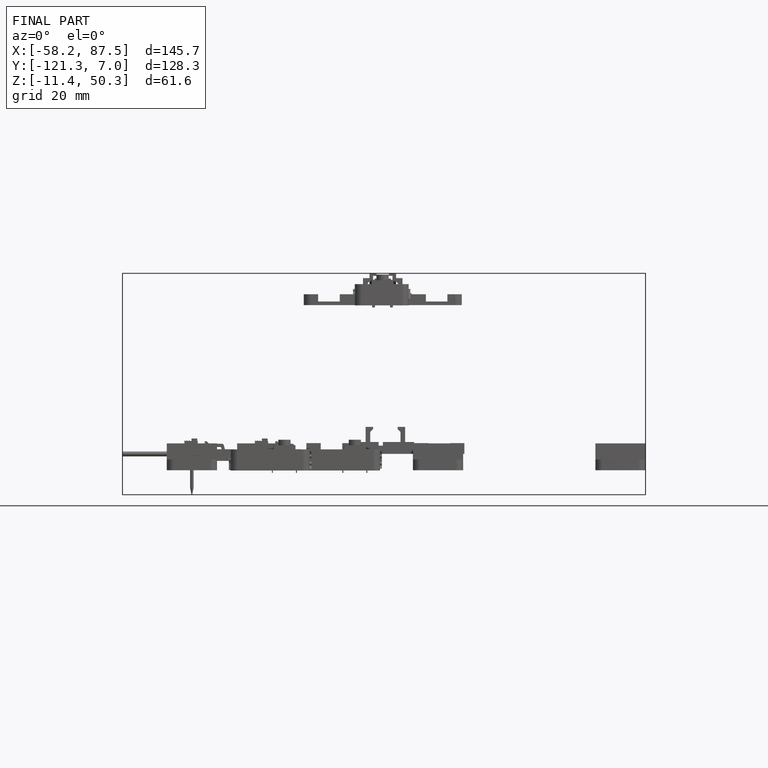
[diagram: finished part — front view with bounding-box wireframe]
